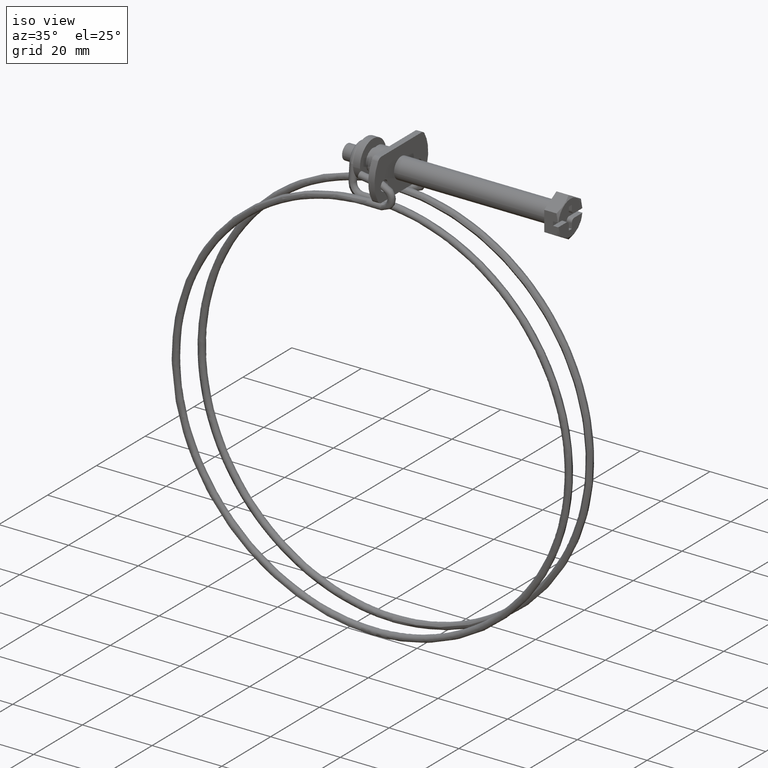
[diagram: clean part render]
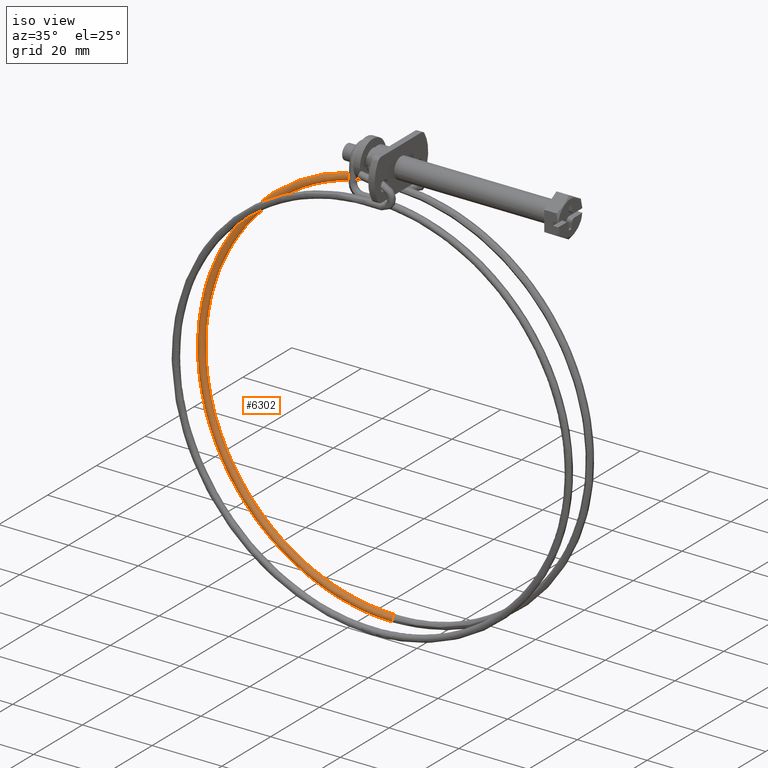
[diagram: same view with one face highlighted and labeled with its STEP entity id]
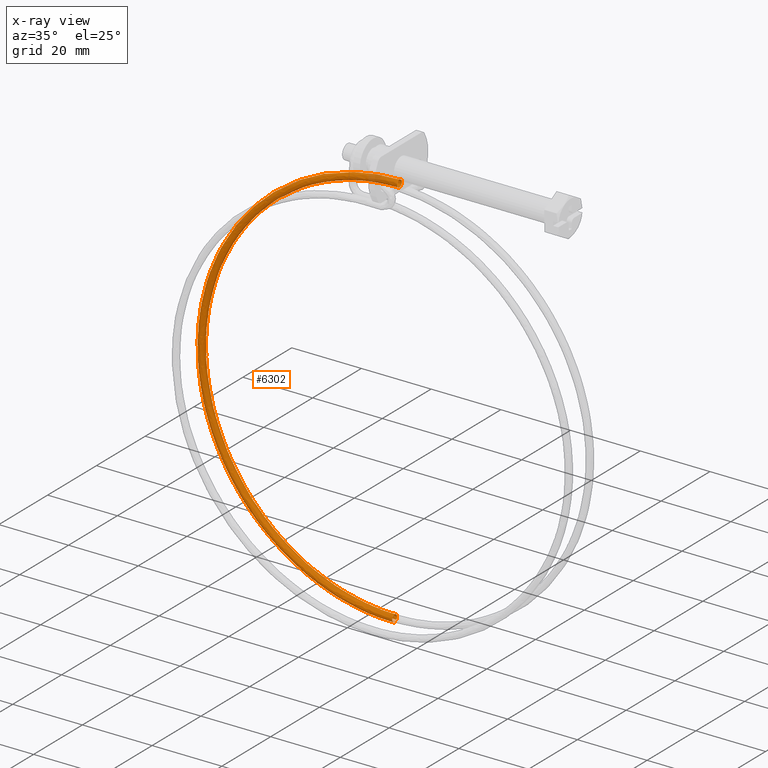
[diagram: x-ray of the same camera — body ghosted, the highlighted face saturated]
A machine part, iso view. The second image highlights one B-rep face of the part: STEP entity #6302.
The next image is the same camera in x-ray: the body ghosted, the highlighted face saturated — about 2% of this face is hidden behind the body in this view.
In plain terms, the highlighted face is a freeform B-spline surface patch.
Its self-contained STEP definition (entity closure, byte-faithful):
#4440=CARTESIAN_POINT('',(-49.449992036168162,5.310972934573751,-7.892637600731360));
#4441=VERTEX_POINT('',#4440);
#4442=CARTESIAN_POINT('',(-49.449991888943913,5.975864826768376,-6.907995083443788));
#4443=VERTEX_POINT('',#4442);
#4444=CARTESIAN_POINT('',(-49.449992036168162,5.310972934573751,-7.892637600731360));
#4445=CARTESIAN_POINT('',(-49.449992032505669,5.309781668978262,-7.866484864355488));
#4446=CARTESIAN_POINT('',(-49.449992028821967,5.309641057172562,-7.840279867467746));
#4447=CARTESIAN_POINT('',(-49.449991988194782,5.319953517655495,-7.552379801499209));
#4448=CARTESIAN_POINT('',(-49.449991950609778,5.436969187849752,-7.296118759620630));
#4449=CARTESIAN_POINT('',(-49.449991908609157,5.728288971389637,-7.024810940483345));
#4450=CARTESIAN_POINT('',(-49.449991897023082,5.847544374120520,-6.953617449771786));
#4451=CARTESIAN_POINT('',(-49.449991888943913,5.975864826768376,-6.907995083443788));
#4452=B_SPLINE_CURVE_WITH_KNOTS('',3,(#4444,#4445,#4446,#4447,#4448,#4449,#4450,#4451),.UNSPECIFIED.,.F.,.U.,(4,2,2,4),(0.737494791701259,0.750000000000000,0.875000000000000,0.940036109681471),.UNSPECIFIED.);
#4453=EDGE_CURVE('',#4441,#4443,#4452,.T.);
#4509=CARTESIAN_POINT('',(-49.449991875600439,6.345883282858191,-6.850644940559949));
#4510=VERTEX_POINT('',#4509);
#4511=CARTESIAN_POINT('',(-49.449991888943913,5.975864826768376,-6.907995083443788));
#4512=CARTESIAN_POINT('',(-49.449991881291027,6.094240067082802,-6.866122067817368));
#4513=CARTESIAN_POINT('',(-49.449991876650508,6.220322197382752,-6.845986983624768));
#4514=CARTESIAN_POINT('',(-49.449991875600439,6.345883282858191,-6.850644940559949));
#4515=B_SPLINE_CURVE_WITH_KNOTS('',3,(#4511,#4512,#4513,#4514),.UNSPECIFIED.,.F.,.U.,(4,4),(0.940036109681471,1.0),.UNSPECIFIED.);
#4516=EDGE_CURVE('',#4443,#4510,#4515,.T.);
#4562=CARTESIAN_POINT('',(-49.449992161300592,6.274120717141793,-8.849357059440951));
#4563=VERTEX_POINT('',#4562);
#4564=CARTESIAN_POINT('',(-49.449992161300592,6.274120717141793,-8.849357059440951));
#4565=CARTESIAN_POINT('',(-49.449992163363753,6.012481209766955,-8.839963757494802));
#4566=CARTESIAN_POINT('',(-49.449992149861551,5.756316559480505,-8.722924751698201));
#4567=CARTESIAN_POINT('',(-49.449992101876923,5.417420209293709,-8.358811559762950));
#4568=CARTESIAN_POINT('',(-49.449992069880430,5.321680972671005,-8.127829266545275));
#4569=CARTESIAN_POINT('',(-49.449992036168162,5.310972934573751,-7.892637600731360));
#4570=B_SPLINE_CURVE_WITH_KNOTS('',3,(#4564,#4565,#4566,#4567,#4568,#4569),.UNSPECIFIED.,.F.,.U.,(4,2,4),(0.500000000000000,0.625000000000000,0.737494791701259),.UNSPECIFIED.);
#4571=EDGE_CURVE('',#4563,#4441,#4570,.T.);
#4573=CARTESIAN_POINT('',(-49.449991918157757,7.063043572549702,-7.192061714365632));
#4574=VERTEX_POINT('',#4573);
#4575=CARTESIAN_POINT('',(-49.449991918157757,7.063043572549702,-7.192061714365632));
#4576=CARTESIAN_POINT('',(-49.449991938283098,7.228081262545154,-7.381473000681186));
#4577=CARTESIAN_POINT('',(-49.449991973071612,7.318375992430878,-7.634717183406879));
#4578=CARTESIAN_POINT('',(-49.449992046426573,7.299964361554796,-8.147513087413552));
#4579=CARTESIAN_POINT('',(-49.449992084629073,7.182924811567026,-8.403665776284766));
#4580=CARTESIAN_POINT('',(-49.449992141016693,6.799638284480071,-8.760382913470052));
#4581=CARTESIAN_POINT('',(-49.449992158854563,6.535751521696692,-8.858750757326677));
#4582=CARTESIAN_POINT('',(-49.449992161300592,6.274120717141793,-8.849357059440951));
#4583=B_SPLINE_CURVE_WITH_KNOTS('',3,(#4575,#4576,#4577,#4578,#4579,#4580,#4581,#4582),.UNSPECIFIED.,.F.,.U.,(4,2,2,4),(0.130000225948603,0.250000000000000,0.375000000000000,0.500000000000000),.UNSPECIFIED.);
#4584=EDGE_CURVE('',#4574,#4563,#4583,.T.);
#5172=CARTESIAN_POINT('',(-49.449999999834112,3.302486886388806,-119.780271351132000));
#5173=VERTEX_POINT('',#5172);
#5189=CARTESIAN_POINT('',(-49.449999999981493,4.287436993399939,-120.849920192037700));
#5190=VERTEX_POINT('',#5189);
#5191=CARTESIAN_POINT('',(-49.449999999834112,3.302486886388806,-119.780271351132000));
#5192=CARTESIAN_POINT('',(-49.449999999835732,3.300805587957763,-119.803466293296790));
#5193=CARTESIAN_POINT('',(-49.449999999837402,3.299954544930314,-119.826725572238500));
#5194=CARTESIAN_POINT('',(-49.449999999858662,3.299961689546046,-120.111797701208700));
#5195=CARTESIAN_POINT('',(-49.449999999885442,3.407743793969527,-120.371985962488690));
#5196=CARTESIAN_POINT('',(-49.449999999938072,3.775039526171405,-120.739265957852500));
#5197=CARTESIAN_POINT('',(-49.449999999963559,4.029890025202121,-120.846533330153090));
#5198=CARTESIAN_POINT('',(-49.449999999981493,4.287436993399939,-120.849920192037700));
#5199=B_SPLINE_CURVE_WITH_KNOTS('',3,(#5191,#5192,#5193,#5194,#5195,#5196,#5197,#5198),.UNSPECIFIED.,.F.,.U.,(4,2,2,4),(0.738888459638309,0.750000000000000,0.875000000000000,0.997999816825496),.UNSPECIFIED.);
#5200=EDGE_CURVE('',#5173,#5190,#5199,.T.);
#5279=CARTESIAN_POINT('',(-49.449999999999903,4.300003000000755,-120.850001000000010));
#5280=VERTEX_POINT('',#5279);
#5281=CARTESIAN_POINT('',(-49.449999999981493,4.287436993399939,-120.849920192037700));
#5282=CARTESIAN_POINT('',(-49.449999999987632,4.291625048852206,-120.849974639949290));
#5283=CARTESIAN_POINT('',(-49.449999999993757,4.295813818037502,-120.850001617475000));
#5284=CARTESIAN_POINT('',(-49.449999999999903,4.300003000000755,-120.850001000000010));
#5285=B_SPLINE_CURVE_WITH_KNOTS('',3,(#5281,#5282,#5283,#5284),.UNSPECIFIED.,.F.,.U.,(4,4),(0.997999816825496,1.0),.UNSPECIFIED.);
#5286=EDGE_CURVE('',#5190,#5280,#5285,.T.);
#5288=CARTESIAN_POINT('',(-49.449999999999918,5.028951952934662,-120.534536709504100));
#5289=VERTEX_POINT('',#5288);
#5299=CARTESIAN_POINT('',(-49.449999999999832,4.300003000000752,-118.850001000000010));
#5300=VERTEX_POINT('',#5299);
#5301=CARTESIAN_POINT('',(-49.449999999999918,5.028951952934662,-120.534536709504100));
#5302=CARTESIAN_POINT('',(-49.449999999999832,5.200679688404102,-120.351169156835890));
#5303=CARTESIAN_POINT('',(-49.449999999999832,5.300003000000754,-120.101327939058090));
#5304=CARTESIAN_POINT('',(-49.449999999999832,5.300003000000754,-119.588201612200900));
#5305=CARTESIAN_POINT('',(-49.449999999999832,5.192229903610566,-119.328014341236700));
#5306=CARTESIAN_POINT('',(-49.449999999999832,4.821989658764033,-118.957774096390200));
#5307=CARTESIAN_POINT('',(-49.449999999999832,4.561802387799901,-118.850001000000010));
#5308=CARTESIAN_POINT('',(-49.449999999999832,4.300003000000752,-118.850001000000010));
#5309=B_SPLINE_CURVE_WITH_KNOTS('',3,(#5301,#5302,#5303,#5304,#5305,#5306,#5307,#5308),.UNSPECIFIED.,.F.,.U.,(4,2,2,4),(0.130000225950271,0.250000000000000,0.375000000000000,0.500000000000000),.UNSPECIFIED.);
#5310=EDGE_CURVE('',#5289,#5300,#5309,.T.);
#5312=CARTESIAN_POINT('',(-49.449999999999832,4.300003000000752,-118.850001000000010));
#5313=CARTESIAN_POINT('',(-49.449999999976562,4.038196655371698,-118.850000495566310));
#5314=CARTESIAN_POINT('',(-49.449999999944517,3.777999799467419,-118.957772896960710));
#5315=CARTESIAN_POINT('',(-49.449999999883772,3.424197143286120,-119.311556066689900));
#5316=CARTESIAN_POINT('',(-49.449999999855343,3.319731375057546,-119.542534346184690));
#5317=CARTESIAN_POINT('',(-49.449999999834112,3.302486886388806,-119.780271351132000));
#5318=B_SPLINE_CURVE_WITH_KNOTS('',3,(#5312,#5313,#5314,#5315,#5316,#5317),.UNSPECIFIED.,.F.,.U.,(4,2,4),(0.500000000000000,0.625000000000000,0.738888459638307),.UNSPECIFIED.);
#5319=EDGE_CURVE('',#5300,#5173,#5318,.T.);
#5961=CARTESIAN_POINT('',(-49.450000000000003,5.028950982884635,-120.534537745304800));
#5962=CARTESIAN_POINT('',(-49.450000000000003,5.200679314367562,-120.351170097699100));
#5963=CARTESIAN_POINT('',(-49.450000000000003,5.300003000000760,-120.101328412287200));
#5964=CARTESIAN_POINT('',(-49.450000000000003,5.300003000000751,-119.588201612201000));
#5965=CARTESIAN_POINT('',(-49.450000000000003,5.192229903610571,-119.328014341236600));
#5966=CARTESIAN_POINT('',(-49.450000000000003,4.821989658764030,-118.957774096390200));
#5967=CARTESIAN_POINT('',(-49.450000000000003,4.561802387799899,-118.850001000000010));
#5968=CARTESIAN_POINT('',(-49.450000000000003,4.038203612201605,-118.850001000000010));
#5969=CARTESIAN_POINT('',(-49.450000000000003,3.778016341237470,-118.957774096390200));
#5970=CARTESIAN_POINT('',(-49.450000000000003,3.407776096390940,-119.328014341236600));
#5971=CARTESIAN_POINT('',(-49.450000000000003,3.300003000000755,-119.588201612201000));
#5972=CARTESIAN_POINT('',(-49.450000000000003,3.300003000000755,-120.111800387799210));
#5973=CARTESIAN_POINT('',(-49.450000000000003,3.407776096390940,-120.371987658763200));
#5974=CARTESIAN_POINT('',(-49.450000000000003,3.778016341237470,-120.742227903609800));
#5975=CARTESIAN_POINT('',(-49.450000000000003,4.038203612201605,-120.850001000000010));
#5976=CARTESIAN_POINT('',(-49.450000000000003,4.300003000000753,-120.850001000000010));
#5977=CARTESIAN_POINT('',(-56.869601747296812,5.028951574587880,-120.534537753010600));
#5978=CARTESIAN_POINT('',(-56.845191156879558,5.200679904098193,-120.351170107201200));
#5979=CARTESIAN_POINT('',(-56.812247688635281,5.300003587084783,-120.101328422867200));
#5980=CARTESIAN_POINT('',(-56.745067436821500,5.300003581700290,-119.588201622781000));
#5981=CARTESIAN_POINT('',(-56.711256086012398,5.192230482611160,-119.328014350647000));
#5982=CARTESIAN_POINT('',(-56.663652931008500,4.821990233986949,-118.957774101935000));
#5983=CARTESIAN_POINT('',(-56.650154259217700,4.561802961966120,-118.850001002798000));
#5984=CARTESIAN_POINT('',(-56.651384509164103,4.038204186515441,-118.850000997303600));
#5985=CARTESIAN_POINT('',(-56.666105855317802,3.778016916755325,-118.957774090997010));
#5986=CARTESIAN_POINT('',(-56.715448846534798,3.407776675897350,-119.328014331976410));
#5987=CARTESIAN_POINT('',(-56.749766645632597,3.300003582267640,-119.588201601770000));
#5988=CARTESIAN_POINT('',(-56.818317922993693,3.300003587758845,-120.111800377368400));
#5989=CARTESIAN_POINT('',(-56.852129273879093,3.407776686847970,-120.371987649503000));
#5990=CARTESIAN_POINT('',(-56.899732428883098,3.778016935472170,-120.742227898216600));
#5991=CARTESIAN_POINT('',(-56.913231100635500,4.038204207494580,-120.850000997303600));
#5992=CARTESIAN_POINT('',(-56.912615975662298,4.300003595219915,-120.850001000050800));
#5993=CARTESIAN_POINT('',(-64.283827396562657,5.055422863678562,-119.059486937025890));
#5994=CARTESIAN_POINT('',(-64.235024067781225,5.227064099755286,-118.880972369149600));
#5995=CARTESIAN_POINT('',(-64.169161223595182,5.326270245229071,-118.637680188444410));
#5996=CARTESIAN_POINT('',(-64.034849850396199,5.326030550442980,-118.137909522245810));
#5997=CARTESIAN_POINT('',(-63.967251875511103,5.218136817344870,-117.884444300204000));
#5998=CARTESIAN_POINT('',(-63.872080378868702,4.847726727527470,-117.523668058379600));
#5999=CARTESIAN_POINT('',(-63.845092907081998,4.587491294174610,-117.418578638668000));
#6000=CARTESIAN_POINT('',(-63.847552507405602,4.063896908028941,-117.418334052151590));
#6001=CARTESIAN_POINT('',(-63.876984433589108,3.803762161877740,-117.523180391516800));
#6002=CARTESIAN_POINT('',(-63.975634330295797,3.433697969626530,-117.883610735657400));
#6003=CARTESIAN_POINT('',(-64.044244831364097,3.326047316917800,-118.136975270605400));
#6004=CARTESIAN_POINT('',(-64.181297252995591,3.326291903432635,-118.646945338155210));
#6005=CARTESIAN_POINT('',(-64.248895227779101,3.434185636532330,-118.900410560298600));
#6006=CARTESIAN_POINT('',(-64.344066724421495,3.804595726348145,-119.261186801919610));
#6007=CARTESIAN_POINT('',(-64.371054196259109,4.064831159701004,-119.366276221733000));
#6008=CARTESIAN_POINT('',(-64.369824396097258,4.326628352773843,-119.366398514991100));
#6009=CARTESIAN_POINT('',(-77.991090258705739,5.157319174373039,-113.381679735825200));
#6010=CARTESIAN_POINT('',(-77.897193074022283,5.328625194181553,-113.221843894766000));
#6011=CARTESIAN_POINT('',(-77.770473528536940,5.427378946393872,-113.003759709273400));
#6012=CARTESIAN_POINT('',(-77.512059602221697,5.426216704750640,-112.555394664952200));
#6013=CARTESIAN_POINT('',(-77.382001680524297,5.317858660268430,-112.327801532583000));
#6014=CARTESIAN_POINT('',(-77.198892539796205,4.946794864338110,-112.003450724254610));
#6015=CARTESIAN_POINT('',(-77.146968876407882,4.686374061674700,-111.908690345988010));
#6016=CARTESIAN_POINT('',(-77.151701126114304,4.162796569827321,-111.907504385127600));
#6017=CARTESIAN_POINT('',(-77.208327898926512,3.902863983250505,-112.001086105435210));
#6018=CARTESIAN_POINT('',(-77.398129451441292,3.533477389255960,-112.323759711945400));
#6019=CARTESIAN_POINT('',(-77.530135464828007,3.426298002689795,-112.550864628120000));
#6020=CARTESIAN_POINT('',(-77.793823144741609,3.427483963551825,-113.008379979468200));
#6021=CARTESIAN_POINT('',(-77.923881066540702,3.535842008032445,-113.235973111736000));
#6022=CARTESIAN_POINT('',(-78.106990207268709,3.906905803964355,-113.560323920267610));
#6023=CARTESIAN_POINT('',(-78.158913870606199,4.167326606627760,-113.655084298432600));
#6024=CARTESIAN_POINT('',(-78.156547745752988,4.429115352551455,-113.655677278862800));
#6025=CARTESIAN_POINT('',(-84.277521664584143,5.232703494637720,-109.181158307322800));
#6026=CARTESIAN_POINT('',(-84.162945199487709,5.403761528396433,-109.035140601394100));
#6027=CARTESIAN_POINT('',(-84.008317798955943,5.502180609449151,-108.835704768209200));
#6028=CARTESIAN_POINT('',(-83.692992538667085,5.500335886758980,-108.425368537470010));
#6029=CARTESIAN_POINT('',(-83.534291540506089,5.391634354338409,-108.216915041162200));
#6030=CARTESIAN_POINT('',(-83.310855682078298,5.020086960173890,-107.919511013232000));
#6031=CARTESIAN_POINT('',(-83.247496702382804,4.759529025134630,-107.832391846005390));
#6032=CARTESIAN_POINT('',(-83.253271150732900,4.235964031342595,-107.830509475887990));
#6033=CARTESIAN_POINT('',(-83.322369020783086,3.976180998235935,-107.915757864347600));
#6034=CARTESIAN_POINT('',(-83.553971182444087,3.607295677389590,-108.210499818967800));
#6035=CARTESIAN_POINT('',(-83.715049306865694,3.500464923745400,-108.418178413324000));
#6036=CARTESIAN_POINT('',(-84.036809776649903,3.502347293837410,-108.836888852955200));
#6037=CARTESIAN_POINT('',(-84.195510774861702,3.611048826257980,-109.045342349365000));
#6038=CARTESIAN_POINT('',(-84.418946633289593,3.982596220420915,-109.342746377091600));
#6039=CARTESIAN_POINT('',(-84.482305612832405,4.243154155463355,-109.429865544420000));
#6040=CARTESIAN_POINT('',(-84.479418388657351,4.504936652362547,-109.430806729478700));
#6041=CARTESIAN_POINT('',(-94.768478010692561,5.420981119123947,-98.690061574744774));
#6042=CARTESIAN_POINT('',(-94.619394449280918,5.591419865759693,-98.578551426857089));
#6043=CARTESIAN_POINT('',(-94.418197776494040,5.689003183927297,-98.425685489487563));
#6044=CARTESIAN_POINT('',(-94.007905725631716,5.685454124554770,-98.110317319840192));
#6045=CARTESIAN_POINT('',(-93.801408605950996,5.575894811406131,-97.949660584475296));
#6046=CARTESIAN_POINT('',(-93.510680370331599,5.203139743847530,-97.719549834321100));
#6047=CARTESIAN_POINT('',(-93.428239510300699,4.942239352781700,-97.651512802894004));
#6048=CARTESIAN_POINT('',(-93.435753054569091,4.418705569944840,-97.647891313763793));
#6049=CARTESIAN_POINT('',(-93.525661191627904,4.159296011630515,-97.712329156554588));
#6050=CARTESIAN_POINT('',(-93.827015183391893,3.791662503147140,-97.937318347625705));
#6051=CARTESIAN_POINT('',(-94.036605350448809,3.685702378625230,-98.096484250258101));
#6052=CARTESIAN_POINT('',(-94.455270708369895,3.689323867780865,-98.418288504898499));
#6053=CARTESIAN_POINT('',(-94.661767827999796,3.798883180929505,-98.578945240161701));
#6054=CARTESIAN_POINT('',(-94.952496063619094,4.171638248489695,-98.809055990519397));
#6055=CARTESIAN_POINT('',(-95.034936923802604,4.432538639552350,-98.877093021844701));
#6056=CARTESIAN_POINT('',(-95.031180151668451,4.694305530967600,-98.878903766409849));
#6057=CARTESIAN_POINT('',(-98.968877017700947,5.533800343019053,-92.403614130444680));
#6058=CARTESIAN_POINT('',(-98.805979089231556,5.703868034443320,-92.312779706251931));
#6059=CARTESIAN_POINT('',(-98.586139149219179,5.800950592676848,-92.187816823696750));
#6060=CARTESIAN_POINT('',(-98.137828654806299,5.796380354292430,-91.929350199641291));
#6061=CARTESIAN_POINT('',(-97.912197118228107,5.686307088886770,-91.797331614138301));
#6062=CARTESIAN_POINT('',(-97.594529450117903,5.312828425601660,-91.607540645663590));
#6063=CARTESIAN_POINT('',(-97.504449462759510,5.051722846853640,-91.550936963561199));
#6064=CARTESIAN_POINT('',(-97.512659226312707,4.528207764534169,-91.546273454983407));
#6065=CARTESIAN_POINT('',(-97.610898422853595,4.269021979265965,-91.598242345581994));
#6066=CARTESIAN_POINT('',(-97.940176449940495,3.902138513031940,-91.781438117132794));
#6067=CARTESIAN_POINT('',(-98.169187641549598,3.796700039075995,-91.911536909025685));
#6068=CARTESIAN_POINT('',(-98.626647329725998,3.801363547634705,-92.175278362194305));
#6069=CARTESIAN_POINT('',(-98.852278866100690,3.911436813037191,-92.307296947646506));
#6070=CARTESIAN_POINT('',(-99.169946534261697,4.284915476322290,-92.497087916121203));
#6071=CARTESIAN_POINT('',(-99.260026521721898,4.546021055067129,-92.553691598223594));
#6072=CARTESIAN_POINT('',(-99.255921639945299,4.807778596226870,-92.556023352487060));
#6073=CARTESIAN_POINT('',(-104.646449708117000,5.779794498305739,-78.696470299778767));
#6074=CARTESIAN_POINT('',(-104.464880127197500,5.949053196588504,-78.650714122856229));
#6075=CARTESIAN_POINT('',(-104.219841739084100,6.045043972956288,-78.586586876916883));
#6076=CARTESIAN_POINT('',(-103.720145092436990,6.038247308985130,-78.452179849657398));
#6077=CARTESIAN_POINT('',(-103.468651265142200,5.927053499153299,-78.382599591726091));
#6078=CARTESIAN_POINT('',(-103.114571959548000,5.551997216268131,-78.280715828842702));
#6079=CARTESIAN_POINT('',(-103.014166842566000,5.290444277063400,-78.249039707224185));
#6080=CARTESIAN_POINT('',(-103.023317623888000,4.766969966553329,-78.242104335847301));
#6081=CARTESIAN_POINT('',(-103.132817173232000,4.508272062480410,-78.266887792977300));
#6082=CARTESIAN_POINT('',(-103.499837637862400,4.143023875884390,-78.358963459444496));
#6083=CARTESIAN_POINT('',(-103.755098502454200,4.038722730595060,-78.425688682374300));
#6084=CARTESIAN_POINT('',(-104.264993039849200,4.045658101991021,-78.562838710139189));
#6085=CARTESIAN_POINT('',(-104.516486867347600,4.156851911826030,-78.632418968121399));
#6086=CARTESIAN_POINT('',(-104.870566172891000,4.531908194711201,-78.734302731004888));
#6087=CARTESIAN_POINT('',(-104.970971289771400,4.793461133919110,-78.765978852623292));
#6088=CARTESIAN_POINT('',(-104.966395899110300,5.055198289174145,-78.769446538337149));
#6089=CARTESIAN_POINT('',(-106.121391047443790,5.912872664534098,-71.281165806085170));
#6090=CARTESIAN_POINT('',(-105.934971363099290,6.081693741927701,-71.259794486802022));
#6091=CARTESIAN_POINT('',(-105.683387487111600,6.177093924232834,-71.228575981263290));
#6092=CARTESIAN_POINT('',(-105.170342897491000,6.169092886218580,-71.161278386856608));
#6093=CARTESIAN_POINT('',(-104.912131143738800,6.057292923351151,-71.125473836986600));
#6094=CARTESIAN_POINT('',(-104.548593639193000,5.681383234854770,-71.071143047529802));
#6095=CARTESIAN_POINT('',(-104.445506491463410,5.419588298192990,-71.052951367905507));
#6096=CARTESIAN_POINT('',(-104.454901709285810,4.896136042983440,-71.044787043382101));
#6097=CARTESIAN_POINT('',(-104.567326220702990,4.637702055863641,-71.054864673072004));
#6098=CARTESIAN_POINT('',(-104.944150569834210,4.273338465799760,-71.097649364102594));
#6099=CARTESIAN_POINT('',(-105.206229986280800,4.169652552892195,-71.130092964373389));
#6100=CARTESIAN_POINT('',(-105.729744873648600,4.177816877396530,-71.198763979125005));
#6101=CARTESIAN_POINT('',(-105.987956627350000,4.289616840260780,-71.234568528944095));
#6102=CARTESIAN_POINT('',(-106.351494131946790,4.665526528769891,-71.288899318400908));
#6103=CARTESIAN_POINT('',(-106.454581279676200,4.927321465428480,-71.307090998076092));
#6104=CARTESIAN_POINT('',(-106.449883670765100,5.189047593030075,-71.311173160312407));
#6105=CARTESIAN_POINT('',(-106.121302222462800,6.179133136650012,-56.444754008013383));
#6106=CARTESIAN_POINT('',(-105.934882830248800,6.347078632907010,-56.472171313721780));
#6107=CARTESIAN_POINT('',(-105.683299348368710,6.441297169089371,-56.506795808797712));
#6108=CARTESIAN_POINT('',(-105.170255562714800,6.430886449035540,-56.573769121218298));
#6109=CARTESIAN_POINT('',(-104.912044213502600,6.317873710056049,-56.605542179804701));
#6110=CARTESIAN_POINT('',(-104.548507278426200,5.940256548523960,-56.646354213164599));
#6111=CARTESIAN_POINT('',(-104.445420292268810,5.677977429293081,-56.655141874214401));
#6112=CARTESIAN_POINT('',(-104.454815495439600,5.154569301812820,-56.644518690505102));
#6113=CARTESIAN_POINT('',(-104.567239830633600,4.896663353248270,-56.625173261489799));
#6114=CARTESIAN_POINT('',(-104.944063589335800,4.534069642229620,-56.569337777610102));
#6115=CARTESIAN_POINT('',(-105.206142595137390,4.431614671190175,-56.533191548414599));
#6116=CARTESIAN_POINT('',(-105.729656662131210,4.442237854918576,-56.464851433648803));
#6117=CARTESIAN_POINT('',(-105.987868011394400,4.555250593901239,-56.433078375113404));
#6118=CARTESIAN_POINT('',(-106.351404946419810,4.932867755420620,-56.392266341753398));
#6119=CARTESIAN_POINT('',(-106.454491932577400,5.195146874654670,-56.383478680652800));
#6120=CARTESIAN_POINT('',(-106.449794330991910,5.456850938397980,-56.388790272532901));
#6121=CARTESIAN_POINT('',(-104.646272370821410,6.312210716643865,-49.029482180234467));
#6122=CARTESIAN_POINT('',(-104.464703373058900,6.479718593938731,-49.081284236214003));
#6123=CARTESIAN_POINT('',(-104.219665772009610,6.573346538656730,-49.148817326790763));
#6124=CARTESIAN_POINT('',(-103.719970730236990,6.561731449861220,-49.282899776557699));
#6125=CARTESIAN_POINT('',(-103.468477710628600,6.448112560515090,-49.348448394601803));
#6126=CARTESIAN_POINT('',(-103.114399542297600,6.069641997129670,-49.436813191972298));
#6127=CARTESIAN_POINT('',(-103.013994747900600,5.807120881510389,-49.459085235707903));
#6128=CARTESIAN_POINT('',(-103.023145499837000,5.283734809237350,-49.447233104277601));
#6129=CARTESIAN_POINT('',(-103.132644697418600,5.026092776458810,-49.413181912566401));
#6130=CARTESIAN_POINT('',(-103.499663983229600,4.664383658076610,-49.308055670205498));
#6131=CARTESIAN_POINT('',(-103.754924028021190,4.562543916712320,-49.237627969295197));
#6132=CARTESIAN_POINT('',(-104.264816927687600,4.574396048139481,-49.100809143002387));
#6133=CARTESIAN_POINT('',(-104.516309947397600,4.688014937479250,-49.035260525009200));
#6134=CARTESIAN_POINT('',(-104.870388115830390,5.066485500867850,-48.946895727613303));
#6135=CARTESIAN_POINT('',(-104.970792910125600,5.329006616493500,-48.924623683877712));
#6136=CARTESIAN_POINT('',(-104.966217534157390,5.590699652628426,-48.930549749592849));
#6137=CARTESIAN_POINT('',(-98.968567070464644,6.558202800803207,-35.322453755537083));
#6138=CARTESIAN_POINT('',(-98.805670161355422,6.724901691764028,-35.419333679448599));
#6139=CARTESIAN_POINT('',(-98.585831596966116,6.817437863808029,-35.547701894703422));
#6140=CARTESIAN_POINT('',(-98.137523907957487,6.803596368164429,-35.805842897329448));
#6141=CARTESIAN_POINT('',(-97.911893783355097,6.688856943821580,-35.933829317293593));
#6142=CARTESIAN_POINT('',(-97.594228103054306,6.308808774111360,-36.110100580580998));
#6143=CARTESIAN_POINT('',(-97.504148679277606,6.045840301793750,-36.157299974903097));
#6144=CARTESIAN_POINT('',(-97.512358391452594,5.522495000979390,-36.143175999762953));
#6145=CARTESIAN_POINT('',(-97.610596973322302,5.265340845300690,-36.081939603364653));
#6146=CARTESIAN_POINT('',(-97.939872939938496,4.905266992796920,-35.885694022858097));
#6147=CARTESIAN_POINT('',(-98.168882698437884,4.804564570523900,-35.751893286280449));
#6148=CARTESIAN_POINT('',(-98.626339524058693,4.818688545667250,-35.488484099927362));
#6149=CARTESIAN_POINT('',(-98.851969648559304,4.933427970016460,-35.360497679912349));
#6150=CARTESIAN_POINT('',(-99.169635328758403,5.313476139723490,-35.184226416650397));
#6151=CARTESIAN_POINT('',(-99.259714752636796,5.576444612034750,-35.137027022328297));
#6152=CARTESIAN_POINT('',(-99.255609896549302,5.838117262443521,-35.144089009898380));
#6153=CARTESIAN_POINT('',(-94.768124498058242,6.671020545880630,-29.036088713161821));
#6154=CARTESIAN_POINT('',(-94.619042099315877,6.837348386489181,-29.153644089791591));
#6155=CARTESIAN_POINT('',(-94.417846995621929,6.929383805160475,-29.309914994458961));
#6156=CARTESIAN_POINT('',(-94.007558144757908,6.914521143885071,-29.624956797010249));
#6157=CARTESIAN_POINT('',(-93.801062635629904,6.799267774017920,-29.781580991599949));
#6158=CARTESIAN_POINT('',(-93.510336667377288,6.418496018063680,-29.998171508335702));
#6159=CARTESIAN_POINT('',(-93.427896450160304,6.155322360759580,-30.056804102186248));
#6160=CARTESIAN_POINT('',(-93.435409935869913,5.631995760217480,-30.041638121267550));
#6161=CARTESIAN_POINT('',(-93.525317371812690,5.375065374647040,-29.967932936104749));
#6162=CARTESIAN_POINT('',(-93.826669013283407,5.015741554569370,-29.729894483495549));
#6163=CARTESIAN_POINT('',(-94.036257545741790,4.915560776030410,-29.567027017169050));
#6164=CARTESIAN_POINT('',(-94.454919638460311,4.930726756923670,-29.245555790075851));
#6165=CARTESIAN_POINT('',(-94.661415147588286,5.045980126784469,-29.088931595333548));
#6166=CARTESIAN_POINT('',(-94.952141115840803,5.426751882738699,-28.872341078699598));
#6167=CARTESIAN_POINT('',(-95.034581333057901,5.689925540052349,-28.813708484798148));
#6168=CARTESIAN_POINT('',(-95.030824590203054,5.951588840323400,-28.821291475257500));
#6169=CARTESIAN_POINT('',(-84.277152582814878,6.859295054758595,-18.545165586687290));
#6170=CARTESIAN_POINT('',(-84.162577331823442,7.025003618495241,-18.697227950600631));
#6171=CARTESIAN_POINT('',(-84.007951569789554,7.116203288103916,-18.900067980220900));
#6172=CARTESIAN_POINT('',(-83.692629650609788,7.099636318339980,-19.310076272874351));
#6173=CARTESIAN_POINT('',(-83.533930333989602,6.983525181938880,-19.514496437879501));
#6174=CARTESIAN_POINT('',(-83.310496843148499,6.601545772568110,-19.798379118879549));
#6175=CARTESIAN_POINT('',(-83.247138534957898,6.338029664894880,-19.876093532940001));
#6176=CARTESIAN_POINT('',(-83.252912922081507,5.814734274799410,-19.859188461777752));
#6177=CARTESIAN_POINT('',(-83.322010059881507,5.558177357844050,-19.764673075122399));
#6178=CARTESIAN_POINT('',(-83.553609767480395,5.200105329409150,-19.456883013183202));
#6179=CARTESIAN_POINT('',(-83.714686185095914,5.100795165587091,-19.245503657463399));
#6180=CARTESIAN_POINT('',(-84.036443245483397,5.117700236774780,-18.827127848633399));
#6181=CARTESIAN_POINT('',(-84.195142562103598,5.233811373182240,-18.622707683780849));
#6182=CARTESIAN_POINT('',(-84.418576052944701,5.615790782553011,-18.338825002679052));
#6183=CARTESIAN_POINT('',(-84.481934361135202,5.879306890216710,-18.261110588669499));
#6184=CARTESIAN_POINT('',(-84.479047167573398,6.140954585264445,-18.269563124250631));
#6185=CARTESIAN_POINT('',(-77.990749422240739,6.934677748915479,-14.344734767203210));
#6186=CARTESIAN_POINT('',(-77.896853358855083,7.100138331949275,-14.510614968155449));
#6187=CARTESIAN_POINT('',(-77.770135326542160,7.191003337626577,-14.732102948018380));
#6188=CARTESIAN_POINT('',(-77.511724485959093,7.173753901533930,-15.180139234134550));
#6189=CARTESIAN_POINT('',(-77.381668117184191,7.057299284603420,-15.403698622211049));
#6190=CARTESIAN_POINT('',(-77.198561163041589,6.674836287423860,-15.714527502603600));
#6191=CARTESIAN_POINT('',(-77.146638119662796,6.411183050343980,-15.799882962810500));
#6192=CARTESIAN_POINT('',(-77.151370312953190,5.887900158023670,-15.782281497403501));
#6193=CARTESIAN_POINT('',(-77.207996409499813,5.631492791317690,-15.679432958729800));
#6194=CARTESIAN_POINT('',(-77.397795695536800,5.273922025220240,-15.343711847191550));
#6195=CARTESIAN_POINT('',(-77.529800132776913,5.174960486801040,-15.112906588741151));
#6196=CARTESIAN_POINT('',(-77.793484663933313,5.192561952201699,-14.655726704949140));
#6197=CARTESIAN_POINT('',(-77.923541032657397,5.309016569129030,-14.432167316974359));
#6198=CARTESIAN_POINT('',(-78.106647986799999,5.691479566305410,-14.121338436480080));
#6199=CARTESIAN_POINT('',(-78.158571030178805,5.955132803391650,-14.035982976273180));
#6200=CARTESIAN_POINT('',(-78.156204933558996,6.216774249548625,-14.044783708976690));
#6201=CARTESIAN_POINT('',(-64.283611278596169,7.036571599621437,-8.667064640109588));
#6202=CARTESIAN_POINT('',(-64.234808660773510,7.201696974476412,-8.851623116984749));
#6203=CARTESIAN_POINT('',(-64.168946776148587,7.292109597796769,-9.098318483692740));
#6204=CARTESIAN_POINT('',(-64.034637359760794,7.273937637121990,-9.597759150479989));
#6205=CARTESIAN_POINT('',(-63.967040369830002,7.157018720011120,-9.847190003857310));
#6206=CARTESIAN_POINT('',(-63.871870259690503,6.773902032510210,-10.194443438324560));
#6207=CARTESIAN_POINT('',(-63.844883181103313,6.510063430579470,-10.290127690715900));
#6208=CARTESIAN_POINT('',(-63.847342745500399,5.986797432163101,-10.271584873707200));
#6209=CARTESIAN_POINT('',(-63.876774242966803,5.730592220140499,-10.157471987811601));
#6210=CARTESIAN_POINT('',(-63.975422702471000,5.373699035952080,-9.783995050095451));
#6211=CARTESIAN_POINT('',(-64.044032203795012,5.275208752300920,-9.526930806809990));
#6212=CARTESIAN_POINT('',(-64.181082628731403,5.293751569316010,-9.017297473353610));
#6213=CARTESIAN_POINT('',(-64.248679618713098,5.410670486430059,-8.767866619874569));
#6214=CARTESIAN_POINT('',(-64.343849728852604,5.793787173934140,-8.420613185509049));
#6215=CARTESIAN_POINT('',(-64.370836807439801,6.057625775858530,-8.324928933117700));
#6216=CARTESIAN_POINT('',(-64.369607025215799,6.319258775069895,-8.334200341622060));
#6217=CARTESIAN_POINT('',(-56.870785687842492,7.063042659296210,-7.192059586781561));
#6218=CARTESIAN_POINT('',(-56.846371202350618,7.228080941442842,-7.381470992738365));
#6219=CARTESIAN_POINT('',(-56.813422477422591,7.318376028268665,-7.634715661140139));
#6220=CARTESIAN_POINT('',(-56.746231505860003,7.299964380244350,-8.147512047741421));
#6221=CARTESIAN_POINT('',(-56.712414759799003,7.182924830161170,-8.403664741192031));
#6222=CARTESIAN_POINT('',(-56.664804008960999,6.799638302972459,-8.760381885500790));
#6223=CARTESIAN_POINT('',(-56.651303183221103,6.535751540144560,-8.858749730985661));
#6224=CARTESIAN_POINT('',(-56.652533629548799,6.012489931041141,-8.839962335163310));
#6225=CARTESIAN_POINT('',(-56.667257324683213,5.756337242201720,-8.722922783089389));
#6226=CARTESIAN_POINT('',(-56.716608189378000,5.399620105143640,-8.339636248980721));
#6227=CARTESIAN_POINT('',(-56.750931464571302,5.301252261363340,-8.075749481414421));
#6228=CARTESIAN_POINT('',(-56.819493680413203,5.320039657306521,-7.552487862433520));
#6229=CARTESIAN_POINT('',(-56.853310426436401,5.437079207383330,-7.296335168626751));
#6230=CARTESIAN_POINT('',(-56.900921177274100,5.820365734610200,-6.939618024572400));
#6231=CARTESIAN_POINT('',(-56.914422003014202,6.084252497393580,-6.841250178985750));
#6232=CARTESIAN_POINT('',(-56.913806779869397,6.345883301954834,-6.850643876896925));
#6233=CARTESIAN_POINT('',(-49.449991922641459,7.063042640297022,-7.192060644433220));
#6234=CARTESIAN_POINT('',(-49.449991949216027,7.228080922511314,-7.381472047009904));
#6235=CARTESIAN_POINT('',(-49.449991985079961,7.318376009410772,-7.634716710485965));
#6236=CARTESIAN_POINT('',(-49.449992058215699,7.299964361554751,-8.147513087413540));
#6237=CARTESIAN_POINT('',(-49.449992095024399,7.182924811566980,-8.403665776284759));
#6238=CARTESIAN_POINT('',(-49.449992146847599,6.799638284480030,-8.760382913470030));
#6239=CARTESIAN_POINT('',(-49.449992161542902,6.535751521696660,-8.858750757326671));
#6240=CARTESIAN_POINT('',(-49.449992160203600,6.012489912586870,-8.839963361555210));
#6241=CARTESIAN_POINT('',(-49.449992144177202,5.756337223715651,-8.722923811567449));
#6242=CARTESIAN_POINT('',(-49.449992090460000,5.399620086530369,-8.339637284480508));
#6243=CARTESIAN_POINT('',(-49.449992053099898,5.301252242673740,-8.075750521697119));
#6244=CARTESIAN_POINT('',(-49.449991978471587,5.320039638445190,-7.552488912587350));
#6245=CARTESIAN_POINT('',(-49.449991941662901,5.437079188432961,-7.296336223716140));
#6246=CARTESIAN_POINT('',(-49.449991889839701,5.820365715519910,-6.939619086530869));
#6247=CARTESIAN_POINT('',(-49.449991875144399,6.084252478303280,-6.841251242674221));
#6248=CARTESIAN_POINT('',(-49.449991875814050,6.345883282858175,-6.850644940559951));
#6249=B_SPLINE_SURFACE_WITH_KNOTS('',3,3,((#5961,#5977,#5993,#6009,#6025,#6041,#6057,#6073,#6089,#6105,#6121,#6137,#6153,#6169,#6185,#6201,#6217,#6233),(#5962,#5978,#5994,#6010,#6026,#6042,#6058,#6074,#6090,#6106,#6122,#6138,#6154,#6170,#6186,#6202,#6218,#6234),(#5963,#5979,#5995,#6011,#6027,#6043,#6059,#6075,#6091,#6107,#6123,#6139,#6155,#6171,#6187,#6203,#6219,#6235),(#5964,#5980,#5996,#6012,#6028,#6044,#6060,#6076,#6092,#6108,#6124,#6140,#6156,#6172,#6188,#6204,#6220,#6236),(#5965,#5981,#5997,#6013,#6029,#6045,#6061,#6077,#6093,#6109,#6125,#6141,#6157,#6173,#6189,#6205,#6221,#6237),(#5966,#5982,#5998,#6014,#6030,#6046,#6062,#6078,#6094,#6110,#6126,#6142,#6158,#6174,#6190,#6206,#6222,#6238),(#5967,#5983,#5999,#6015,#6031,#6047,#6063,#6079,#6095,#6111,#6127,#6143,#6159,#6175,#6191,#6207,#6223,#6239),(#5968,#5984,#6000,#6016,#6032,#6048,#6064,#6080,#6096,#6112,#6128,#6144,#6160,#6176,#6192,#6208,#6224,#6240),(#5969,#5985,#6001,#6017,#6033,#6049,#6065,#6081,#6097,#6113,#6129,#6145,#6161,#6177,#6193,#6209,#6225,#6241),(#5970,#5986,#6002,#6018,#6034,#6050,#6066,#6082,#6098,#6114,#6130,#6146,#6162,#6178,#6194,#6210,#6226,#6242),(#5971,#5987,#6003,#6019,#6035,#6051,#6067,#6083,#6099,#6115,#6131,#6147,#6163,#6179,#6195,#6211,#6227,#6243),(#5972,#5988,#6004,#6020,#6036,#6052,#6068,#6084,#6100,#6116,#6132,#6148,#6164,#6180,#6196,#6212,#6228,#6244),(#5973,#5989,#6005,#6021,#6037,#6053,#6069,#6085,#6101,#6117,#6133,#6149,#6165,#6181,#6197,#6213,#6229,#6245),(#5974,#5990,#6006,#6022,#6038,#6054,#6070,#6086,#6102,#6118,#6134,#6150,#6166,#6182,#6198,#6214,#6230,#6246),(#5975,#5991,#6007,#6023,#6039,#6055,#6071,#6087,#6103,#6119,#6135,#6151,#6167,#6183,#6199,#6215,#6231,#6247),(#5976,#5992,#6008,#6024,#6040,#6056,#6072,#6088,#6104,#6120,#6136,#6152,#6168,#6184,#6200,#6216,#6232,#6248)),.UNSPECIFIED.,.F.,.F.,.U.,(4,2,2,2,2,2,2,4),(4,2,2,2,2,2,2,2,4),(0.0,0.753982236861554,1.539380400259005,2.324778563656457,3.110176727053908,3.895574890451360,4.680973053848812,5.466371217246263),(0.0,22.391444712166269,44.782889424332602,67.174334136498857,89.565778848665175,111.957223560831100,134.348668272997400,156.740112985163710,179.131557697329900),.UNSPECIFIED.);
#6250=ORIENTED_EDGE('',*,*,#5310,.F.);
#6251=CARTESIAN_POINT('',(-49.449999999999918,5.028951952934662,-120.534536709504100));
#6252=CARTESIAN_POINT('',(-56.869601747296720,5.028952544637906,-120.534536717210000));
#6253=CARTESIAN_POINT('',(-64.283827396504208,5.055423833236691,-119.059485928629500));
#6254=CARTESIAN_POINT('',(-77.991090258422716,5.157320142037739,-113.381678832913910));
#6255=CARTESIAN_POINT('',(-84.277521664134937,5.232704460901633,-109.181157482450900));
#6256=CARTESIAN_POINT('',(-94.768478009828357,5.420982081889299,-98.690060944781663));
#6257=CARTESIAN_POINT('',(-98.968877016588038,5.533801303688007,-92.403613617274317));
#6258=CARTESIAN_POINT('',(-104.646449706461890,5.779795454403646,-78.696470041266551));
#6259=CARTESIAN_POINT('',(-106.121391045495400,5.912873618159157,-71.281165685338181));
#6260=CARTESIAN_POINT('',(-106.121302219927500,6.179134085327438,-56.444754162904637));
#6261=CARTESIAN_POINT('',(-104.646272367992690,6.312211662848452,-49.029482472890336));
#6262=CARTESIAN_POINT('',(-98.968567067093716,6.558203742436787,-35.322454302848961));
#6263=CARTESIAN_POINT('',(-94.768124494438666,6.671021485417838,-29.036089377264929));
#6264=CARTESIAN_POINT('',(-84.277152578780289,6.859295990797301,-18.545166445696012));
#6265=CARTESIAN_POINT('',(-77.990749418039996,6.934678683553427,-14.344735704249640));
#6266=CARTESIAN_POINT('',(-64.283611274170823,7.036572532366002,-8.667065682638620));
#6267=CARTESIAN_POINT('',(-56.870785683358797,7.063043591548891,-7.192060656713982));
#6268=CARTESIAN_POINT('',(-49.449991918157757,7.063043572549702,-7.192061714365632));
#6269=B_SPLINE_CURVE_WITH_KNOTS('',3,(#6251,#6252,#6253,#6254,#6255,#6256,#6257,#6258,#6259,#6260,#6261,#6262,#6263,#6264,#6265,#6266,#6267,#6268),.UNSPECIFIED.,.F.,.U.,(4,2,2,2,2,2,2,2,4),(0.499715207830617,0.562250806851790,0.624786405872963,0.687322004894136,0.749857603915309,0.812393202936481,0.874928801957654,0.937464400978827,1.0),.UNSPECIFIED.);
#6270=EDGE_CURVE('',#5289,#4574,#6269,.T.);
#6271=ORIENTED_EDGE('',*,*,#6270,.T.);
#6272=ORIENTED_EDGE('',*,*,#4584,.T.);
#6273=ORIENTED_EDGE('',*,*,#4571,.T.);
#6274=ORIENTED_EDGE('',*,*,#4453,.T.);
#6275=ORIENTED_EDGE('',*,*,#4516,.T.);
#6276=CARTESIAN_POINT('',(-49.450000000000003,4.300003000000753,-120.850001000000010));
#6277=CARTESIAN_POINT('',(-56.912615975662298,4.300003595219915,-120.850001000050800));
#6278=CARTESIAN_POINT('',(-64.369824396097258,4.326628352773843,-119.366398514991100));
#6279=CARTESIAN_POINT('',(-78.156547745752988,4.429115352551455,-113.655677278862800));
#6280=CARTESIAN_POINT('',(-84.479418388657351,4.504936652362547,-109.430806729478700));
#6281=CARTESIAN_POINT('',(-95.031180151668451,4.694305530967600,-98.878903766409849));
#6282=CARTESIAN_POINT('',(-99.255921639945299,4.807778596226870,-92.556023352487060));
#6283=CARTESIAN_POINT('',(-104.966395899110300,5.055198289174145,-78.769446538337149));
#6284=CARTESIAN_POINT('',(-106.449883670765100,5.189047593030075,-71.311173160312407));
#6285=CARTESIAN_POINT('',(-106.449794330991910,5.456850938397980,-56.388790272532901));
#6286=CARTESIAN_POINT('',(-104.966217534157390,5.590699652628426,-48.930549749592849));
#6287=CARTESIAN_POINT('',(-99.255609896549302,5.838117262443521,-35.144089009898380));
#6288=CARTESIAN_POINT('',(-95.030824590203054,5.951588840323400,-28.821291475257500));
#6289=CARTESIAN_POINT('',(-84.479047167573398,6.140954585264445,-18.269563124250631));
#6290=CARTESIAN_POINT('',(-78.156204933558996,6.216774249548625,-14.044783708976690));
#6291=CARTESIAN_POINT('',(-64.369607025215799,6.319258775069895,-8.334200341622060));
#6292=CARTESIAN_POINT('',(-56.913806779869397,6.345883301954834,-6.850643876896925));
#6293=CARTESIAN_POINT('',(-49.449991875600439,6.345883282858191,-6.850644940559949));
#6294=B_SPLINE_CURVE_WITH_KNOTS('',3,(#6276,#6277,#6278,#6279,#6280,#6281,#6282,#6283,#6284,#6285,#6286,#6287,#6288,#6289,#6290,#6291,#6292,#6293),.UNSPECIFIED.,.F.,.U.,(4,2,2,2,2,2,2,2,4),(0.499715207830617,0.562250806851790,0.624786405872963,0.687322004894136,0.749857603915309,0.812393202936481,0.874928801957654,0.937464400978827,1.0),.UNSPECIFIED.);
#6295=EDGE_CURVE('',#5280,#4510,#6294,.T.);
#6296=ORIENTED_EDGE('',*,*,#6295,.F.);
#6297=ORIENTED_EDGE('',*,*,#5286,.F.);
#6298=ORIENTED_EDGE('',*,*,#5200,.F.);
#6299=ORIENTED_EDGE('',*,*,#5319,.F.);
#6300=EDGE_LOOP('',(#6250,#6271,#6272,#6273,#6274,#6275,#6296,#6297,#6298,#6299));
#6301=FACE_OUTER_BOUND('',#6300,.T.);
#6302=ADVANCED_FACE('',(#6301),#6249,.F.);